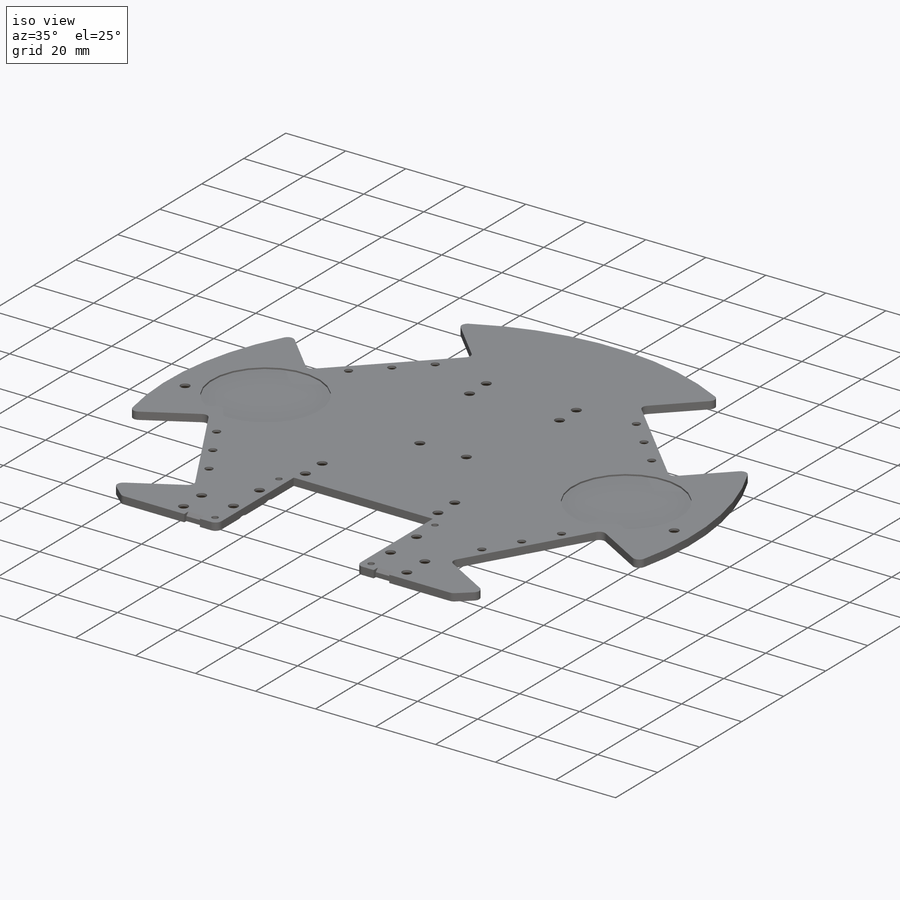
[diagram: iso view]
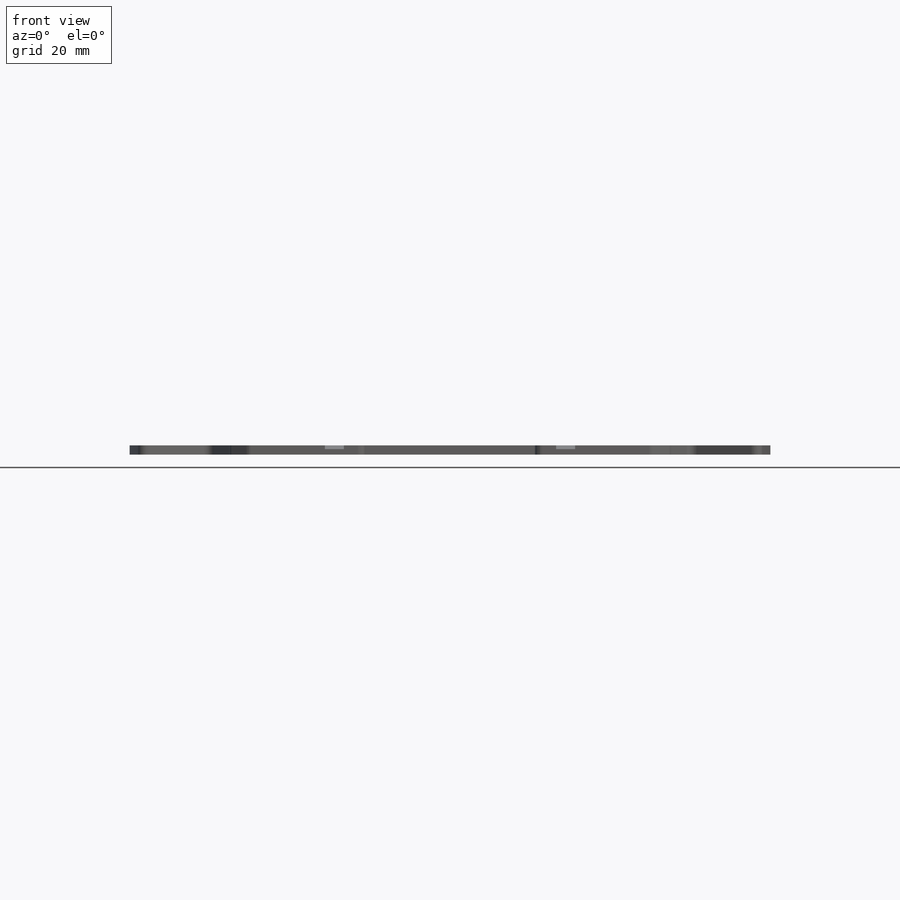
[diagram: front view]
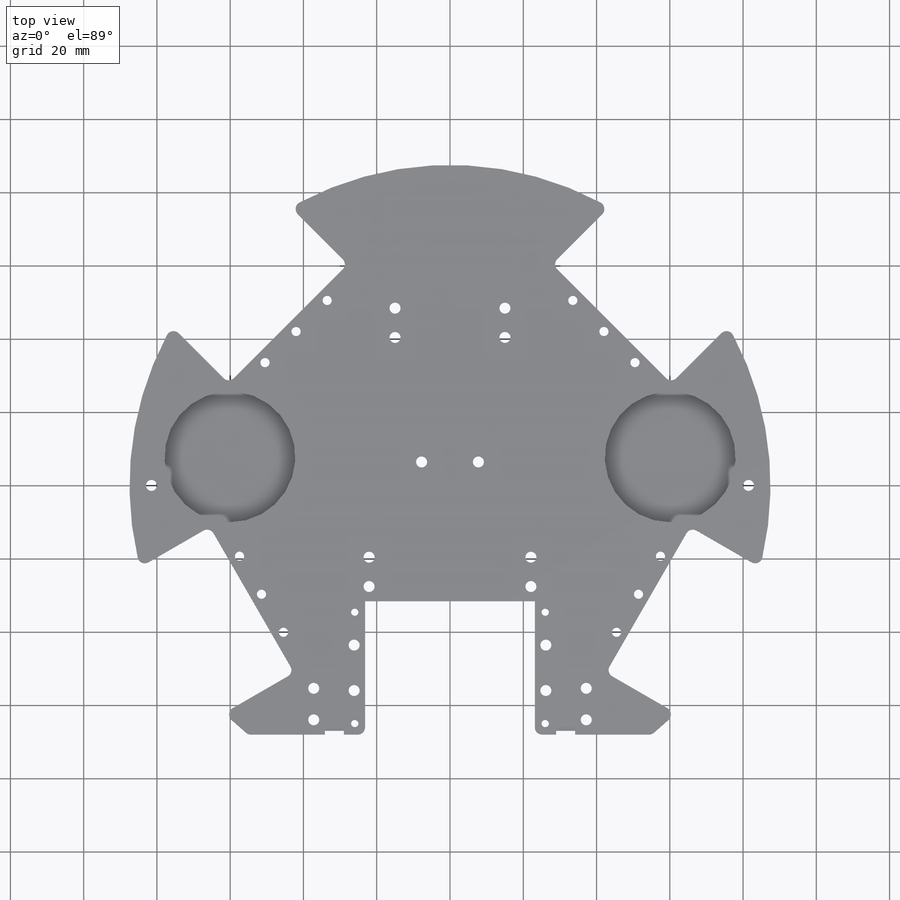
[diagram: top view]
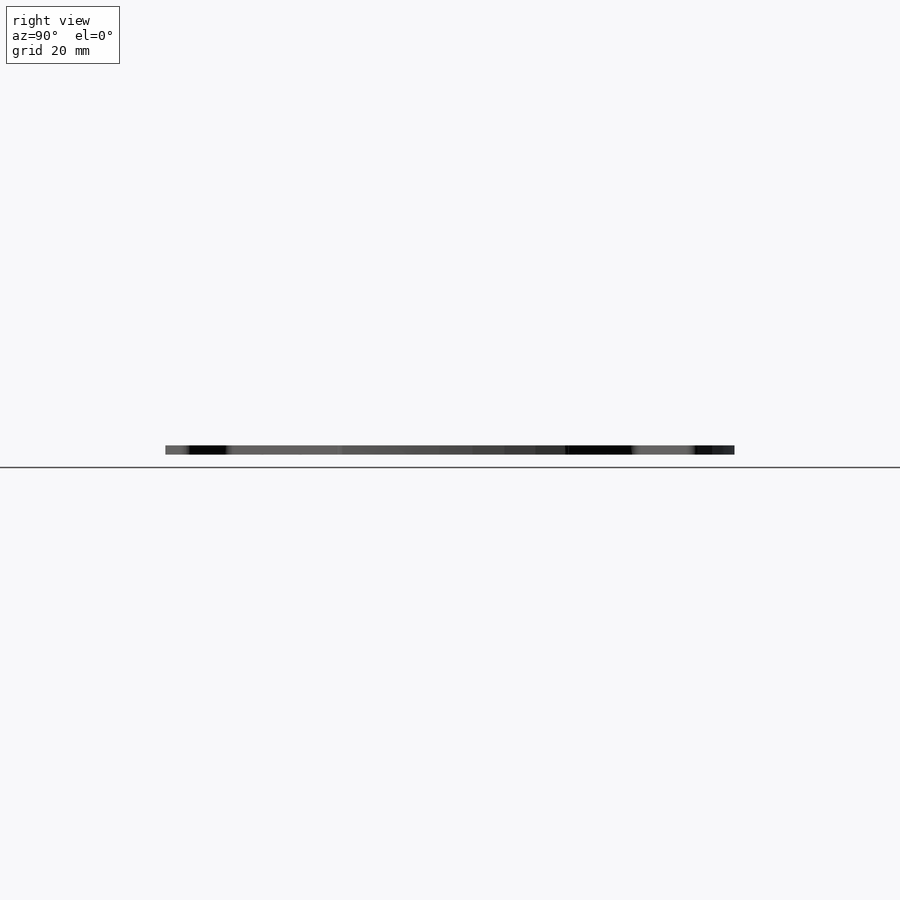
[diagram: right view]
SOLIDWORKS PART (.sldprt)
format: sldprt  version: not decoded by parser v0  size: 557,056 bytes
history: native  units: mm
features: sketch x5, plane x3, cut_extrude x3, chamfer x2, material x1, extrude x1 (+9 scaffold rows collapsed)
feature tree (24):
  scaffold x9  (default folders/planes/origin — collapsed)
  material  "Material <não especificado>"
  plane  "Plano frontal"
  plane  "Plano superior"
  plane  "Plano direito"
  sketch  "Esboço3"  dims[c1.D1=87.5mm c1.D13=2.0mm c1.D14=2.0mm c1.D2=36.4mm c1.D3=23.17mm c1.D4=51.0mm c1.D5=~159.151637mm c2.D5=57.0deg c2.D6=46.0mm c2.D7=23.0mm c2.D8=22.0mm c2.D9=~81.64925mm c3.D9=45.0deg c3.D10=46.0mm c3.D11=22.0mm c3.D12=23.0mm c3.D5=~154.442973mm c4.D5=30.0deg c4.D4=155.5mm]
  extrude  "Ressalto-extrusão1"  Depth=2.5mm
  sketch  "Esboço7"  dims[D1=5.8mm D2=5.2mm D3=6.0mm D4=1.0mm D5=6.0mm D6=5.2mm D7=1.0mm D8=5.8mm]
  cut_extrude  "Corte-extrusão1"  [1 undecoded]
  sketch  "Esboço9"  dims[D3=2.0mm D1=35.0mm D2=38.0mm]
  chamfer  "Chanfro1"  Distance=1mm Angle=45deg
  sketch  "Esboço10"  dims[D1=3.0mm]
  cut_extrude  "Corte-extrusão4"  [1 undecoded]
  chamfer  "Chanfro2"  Distance=1.8mm Angle=45deg
  sketch  "Esboço11"
  cut_extrude  "Corte-extrusão5"  Depth=0.5mm
decode coverage: 8 of 11 modeling features carry decoded parameters
note: ~ marks probable driven/reference dimensions
note: 2 parameter values undecoded
note: suppression state not decoded; provenance and decode notes live in map.json
